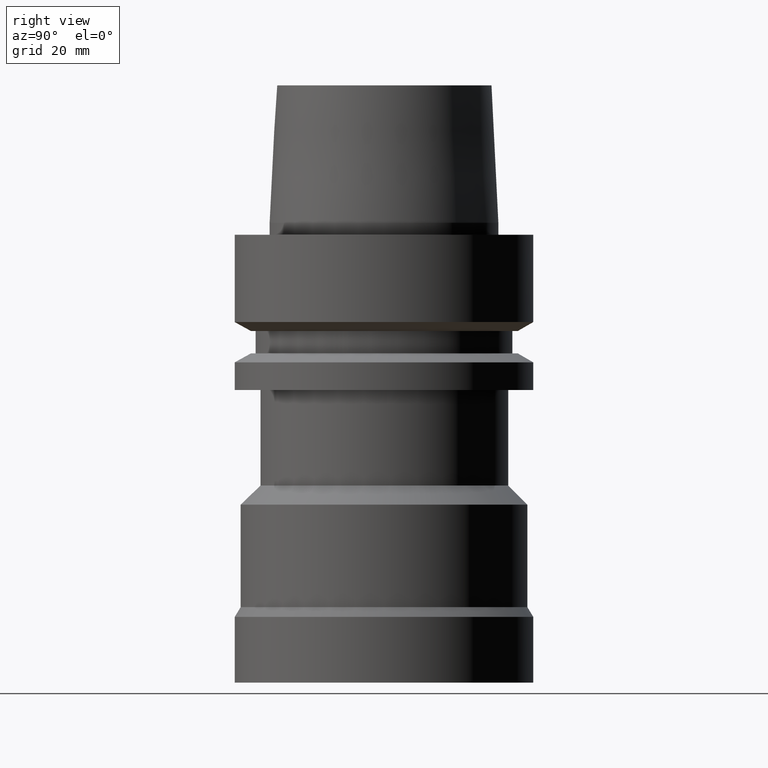
[diagram: clean part render]
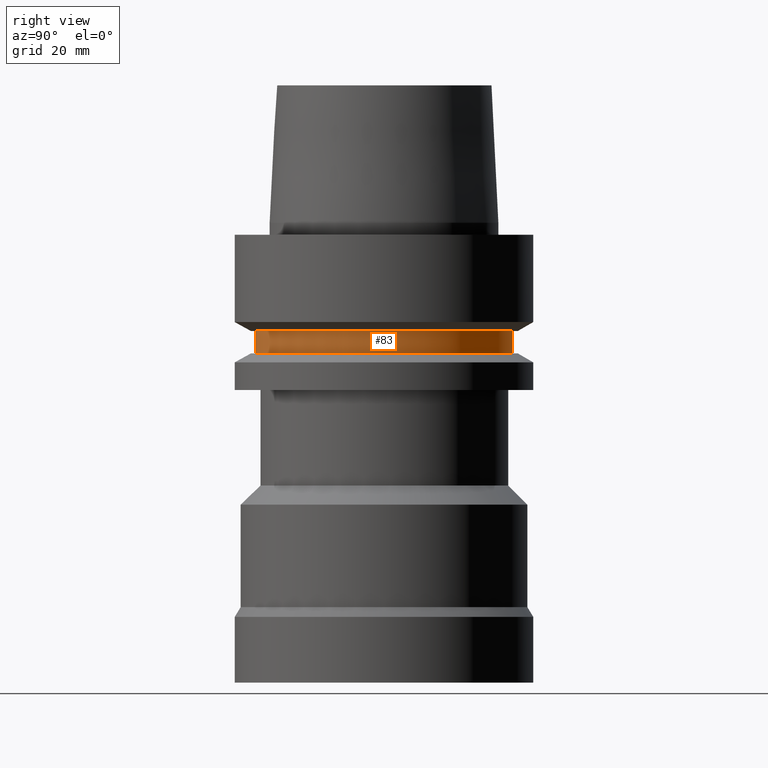
[diagram: same view with one face highlighted and labeled with its STEP entity id]
A machine part, right view. The second image highlights one B-rep face of the part: STEP entity #83.
In plain terms, the highlighted cylindrical surface (bore or boss wall) has radius 21.5 mm, axis along (-0, -0, 1).
Its self-contained STEP definition (entity closure, byte-faithful):
#83=ADVANCED_FACE('',(#116,#117),#118,.T.);
#116=FACE_BOUND('',#168,.T.);
#117=FACE_BOUND('',#169,.T.);
#118=CYLINDRICAL_SURFACE('',#170,21.5);
#168=EDGE_LOOP('',(#236));
#169=EDGE_LOOP('',(#237));
#170=AXIS2_PLACEMENT_3D('',#238,#239,#240);
#236=ORIENTED_EDGE('',*,*,#294,.F.);
#237=ORIENTED_EDGE('',*,*,#293,.T.);
#238=CARTESIAN_POINT('',(1.10218211923262E-015,2.20436423846524E-015,-18.0));
#239=DIRECTION('',(-6.12323399573677E-017,-1.22464679914735E-016,1.0));
#240=DIRECTION('',(-1.23259516440783E-032,1.0,1.22464679914735E-016));
#293=EDGE_CURVE('',#317,#317,#318,.T.);
#294=EDGE_CURVE('',#319,#319,#320,.T.);
#317=VERTEX_POINT('',#351);
#318=CIRCLE('',#352,21.5);
#319=VERTEX_POINT('',#353);
#320=CIRCLE('',#354,21.5);
#351=CARTESIAN_POINT('',(9.87371481812553E-016,21.5,-16.125));
#352=AXIS2_PLACEMENT_3D('',#392,#393,#394);
#353=CARTESIAN_POINT('',(1.21699275665268E-015,21.5,-19.875));
#354=AXIS2_PLACEMENT_3D('',#395,#396,#397);
#392=CARTESIAN_POINT('',(9.87371481812554E-016,1.97474296362511E-015,-16.125));
#393=DIRECTION('',(6.12323399573677E-017,1.22464679914735E-016,-1.0));
#394=DIRECTION('',(-1.23259516440783E-032,1.0,1.22464679914735E-016));
#395=CARTESIAN_POINT('',(1.21699275665268E-015,2.43398551330536E-015,-19.875));
#396=DIRECTION('',(6.12323399573677E-017,1.22464679914735E-016,-1.0));
#397=DIRECTION('',(-1.23259516440783E-032,1.0,1.22464679914735E-016));